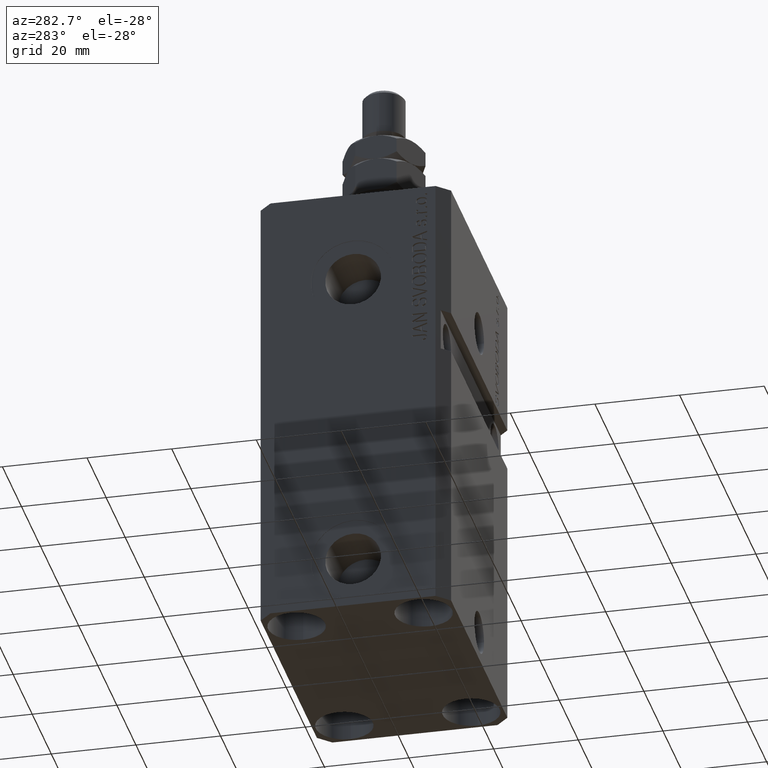
[diagram: clean part render]
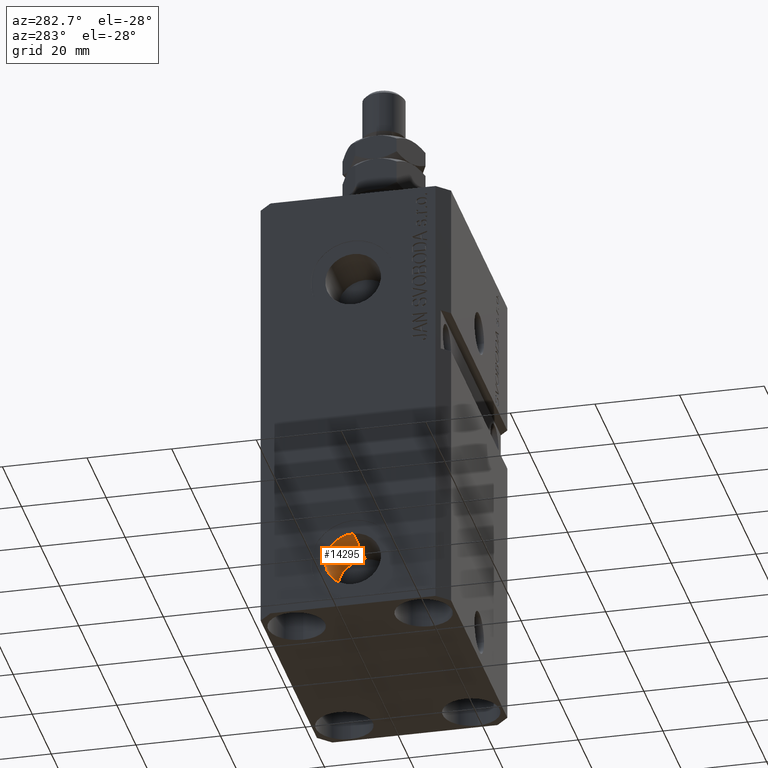
[diagram: same view with one face highlighted and labeled with its STEP entity id]
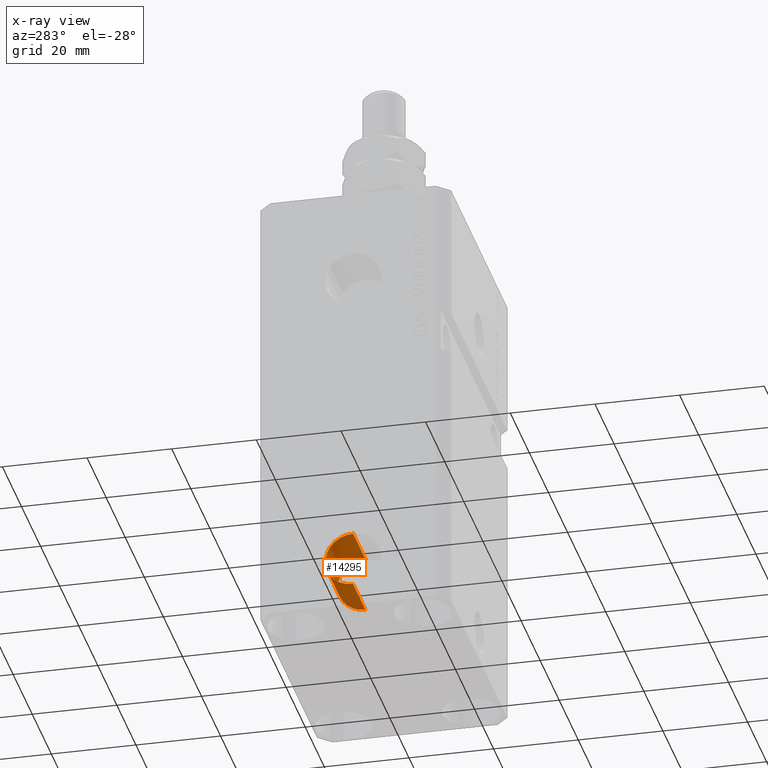
[diagram: x-ray of the same camera — body ghosted, the highlighted face saturated]
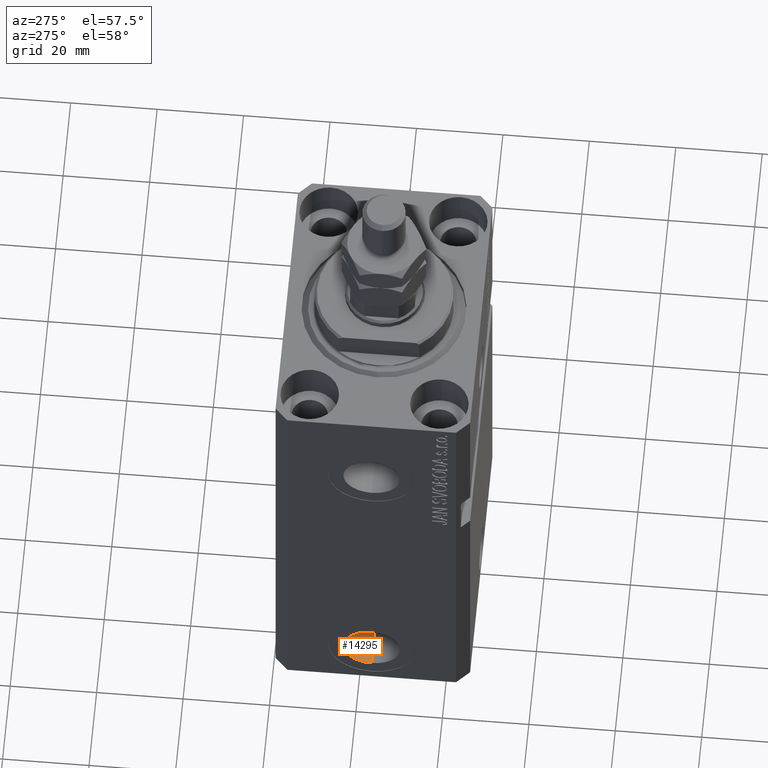
[diagram: same view with one face highlighted and labeled with its STEP entity id]
A machine part, auxiliary view. The second image highlights one B-rep face of the part: STEP entity #14295.
The next image is the same camera in x-ray: the body ghosted, the highlighted face saturated — about 0% of this face is hidden behind the body in this view.
A second angle (auxiliary view) of the same face is appended — the face is thin or edge-on in the first view.
In plain terms, the highlighted cylindrical surface (edge-blend (fillet) strip) has radius 6.58 mm, axis along (-1, -0, -0).
Its self-contained STEP definition (entity closure, byte-faithful):
#362 = DIRECTION ( 'NONE',  ( -1.000000000000000000, 0.000000000000000000, 0.000000000000000000 ) ) ;
#651 = CARTESIAN_POINT ( 'NONE',  ( -32.39999999999650271, -1.163414459189985643E-14, -95.00000000000000000 ) ) ;
#2509 = VERTEX_POINT ( 'NONE', #21265 ) ;
#2659 = VERTEX_POINT ( 'NONE', #8987 ) ;
#3558 = LINE ( 'NONE', #8038, #29446 ) ;
#5607 = FACE_OUTER_BOUND ( 'NONE', #27807, .T. ) ;
#7083 = ORIENTED_EDGE ( 'NONE', *, *, #11311, .F. ) ;
#8038 = CARTESIAN_POINT ( 'NONE',  ( -19.39999999999650271, -1.163414459189985643E-14, -88.42000000000000171 ) ) ;
#8987 = CARTESIAN_POINT ( 'NONE',  ( -19.39999999999650271, -1.082832699806089739E-14, -101.5799999999999983 ) ) ;
#9371 = CYLINDRICAL_SURFACE ( 'NONE', #29022, 6.580000000000002736 ) ;
#9398 = AXIS2_PLACEMENT_3D ( 'NONE', #14990, #362, #40136 ) ;
#9773 = LINE ( 'NONE', #27670, #25488 ) ;
#10464 = CIRCLE ( 'NONE', #42005, 6.580000000000002736 ) ;
#11311 = EDGE_CURVE ( 'NONE', #19676, #2659, #34207, .T. ) ;
#13218 = CARTESIAN_POINT ( 'NONE',  ( -32.39999999999650271, -1.082832699806089739E-14, -101.5799999999999983 ) ) ;
#14295 = ADVANCED_FACE ( 'NONE', ( #5607 ), #9371, .F. ) ;
#14990 = CARTESIAN_POINT ( 'NONE',  ( -19.39999999999650271, -1.163414459189985643E-14, -95.00000000000000000 ) ) ;
#15051 = DIRECTION ( 'NONE',  ( -1.000000000000000000, 0.000000000000000000, 0.000000000000000000 ) ) ;
#16682 = DIRECTION ( 'NONE',  ( 0.000000000000000000, 0.000000000000000000, 1.000000000000000000 ) ) ;
#19676 = VERTEX_POINT ( 'NONE', #29785 ) ;
#21265 = CARTESIAN_POINT ( 'NONE',  ( -32.39999999999650271, -1.163414459189985643E-14, -88.42000000000000171 ) ) ;
#21557 = EDGE_CURVE ( 'NONE', #2659, #30885, #9773, .T. ) ;
#23738 = CARTESIAN_POINT ( 'NONE',  ( -19.39999999999650271, -1.163414459189985643E-14, -95.00000000000000000 ) ) ;
#25488 = VECTOR ( 'NONE', #35196, 1000.000000000000000 ) ;
#25696 = DIRECTION ( 'NONE',  ( -1.000000000000000000, -0.000000000000000000, -0.000000000000000000 ) ) ;
#27670 = CARTESIAN_POINT ( 'NONE',  ( -19.39999999999650271, -1.082832699806089739E-14, -101.5799999999999983 ) ) ;
#27807 = EDGE_LOOP ( 'NONE', ( #37162, #7083, #28283, #41898 ) ) ;
#28283 = ORIENTED_EDGE ( 'NONE', *, *, #45795, .T. ) ;
#29022 = AXIS2_PLACEMENT_3D ( 'NONE', #23738, #38070, #16682 ) ;
#29446 = VECTOR ( 'NONE', #25696, 1000.000000000000000 ) ;
#29785 = CARTESIAN_POINT ( 'NONE',  ( -19.39999999999650271, -1.163414459189985643E-14, -88.42000000000000171 ) ) ;
#30885 = VERTEX_POINT ( 'NONE', #13218 ) ;
#32921 = DIRECTION ( 'NONE',  ( 0.000000000000000000, 0.000000000000000000, 1.000000000000000000 ) ) ;
#34207 = CIRCLE ( 'NONE', #9398, 6.580000000000002736 ) ;
#35196 = DIRECTION ( 'NONE',  ( -1.000000000000000000, -0.000000000000000000, -0.000000000000000000 ) ) ;
#37032 = EDGE_CURVE ( 'NONE', #2509, #30885, #10464, .T. ) ;
#37162 = ORIENTED_EDGE ( 'NONE', *, *, #21557, .F. ) ;
#38070 = DIRECTION ( 'NONE',  ( -1.000000000000000000, -0.000000000000000000, -0.000000000000000000 ) ) ;
#40136 = DIRECTION ( 'NONE',  ( 0.000000000000000000, 0.000000000000000000, 1.000000000000000000 ) ) ;
#41898 = ORIENTED_EDGE ( 'NONE', *, *, #37032, .T. ) ;
#42005 = AXIS2_PLACEMENT_3D ( 'NONE', #651, #15051, #32921 ) ;
#45795 = EDGE_CURVE ( 'NONE', #19676, #2509, #3558, .T. ) ;